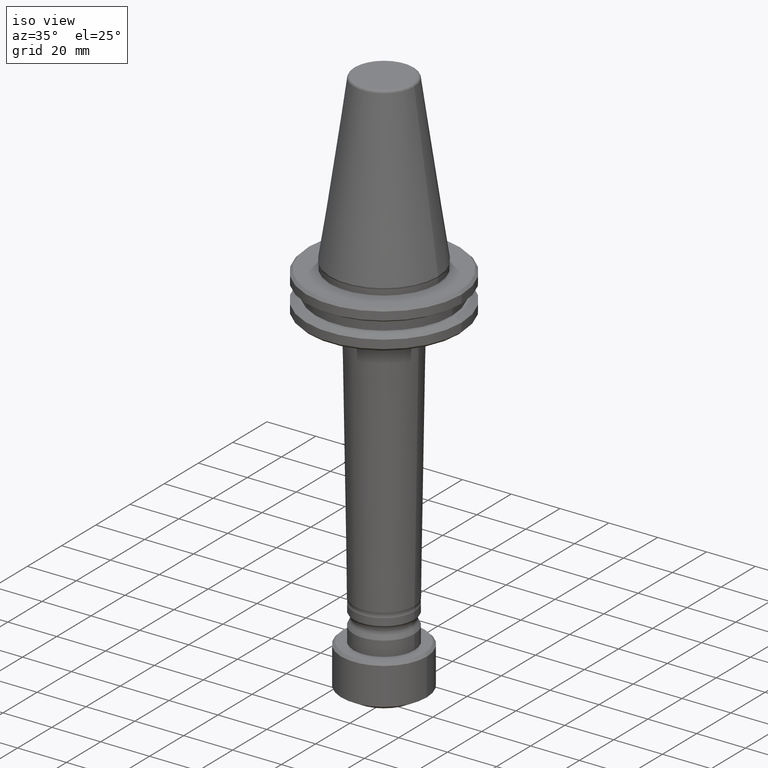
[diagram: clean part render]
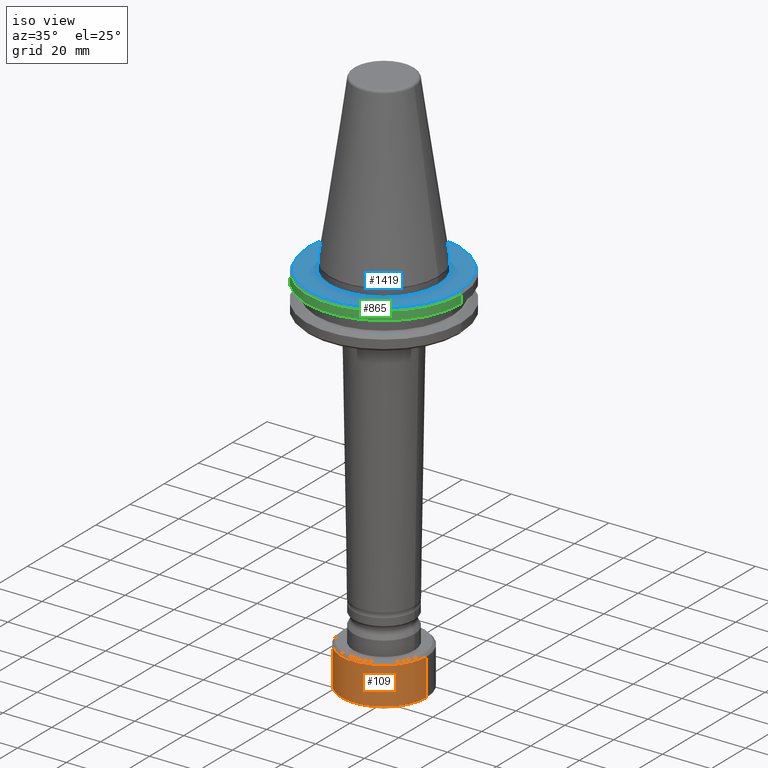
[diagram: same view with three faces highlighted in distinct colors, each labeled with its STEP entity id]
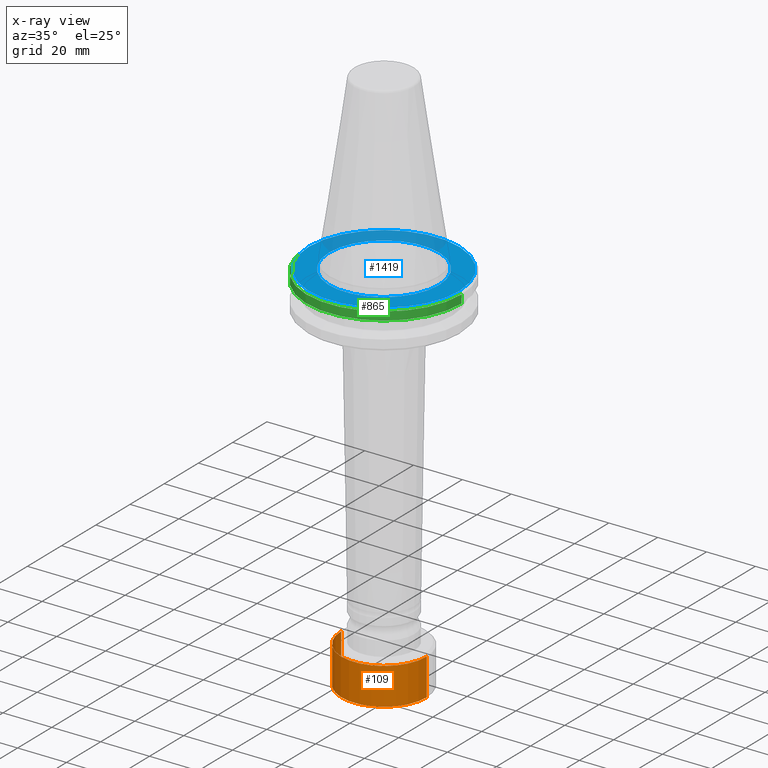
[diagram: x-ray of the same camera — body ghosted, the three highlighted faces saturated]
A machine part, iso view with three faces highlighted in distinct colors.
The next image is the same camera in x-ray (body ghosted, the three faces saturated) — at least one of them is partly hidden behind the body in this view.
Their STEP definitions:

[orange] entity #109 — the highlighted cylindrical surface (partial cylindrical patch) has radius 17.5 mm, axis along (-0, -0, 1).
#78 = CARTESIAN_POINT ( 'NONE',  ( -17.49999999999998900, 2.143131898507866700E-015, -8.613248653999983500 ) ) ;
#109 = ADVANCED_FACE ( 'NONE', ( #796 ), #435, .T. ) ;
#123 = DIRECTION ( 'NONE',  ( -0.0000000000000000000, -0.0000000000000000000, 1.000000000000000000 ) ) ;
#132 = CARTESIAN_POINT ( 'NONE',  ( 17.49999999999998900, 0.0000000000000000000, -8.613248653999983500 ) ) ;
#149 = DIRECTION ( 'NONE',  ( -0.0000000000000000000, -0.0000000000000000000, 1.000000000000000000 ) ) ;
#284 = CARTESIAN_POINT ( 'NONE',  ( -17.49999999999998900, 2.143131898507866300E-015, 256.3737897661631600 ) ) ;
#290 = VERTEX_POINT ( 'NONE', #132 ) ;
#357 = CIRCLE ( 'NONE', #616, 17.49999999999998900 ) ;
#358 = EDGE_CURVE ( 'NONE', #629, #1293, #631, .T. ) ;
#435 = CYLINDRICAL_SURFACE ( 'NONE', #1435, 17.49999999999998900 ) ;
#501 = VERTEX_POINT ( 'NONE', #1264 ) ;
#506 = CARTESIAN_POINT ( 'NONE',  ( -17.49999999999998900, 2.143131898507866300E-015, 6.500000000000005300 ) ) ;
#508 = ORIENTED_EDGE ( 'NONE', *, *, #975, .F. ) ;
#549 = CIRCLE ( 'NONE', #1430, 17.49999999999998900 ) ;
#562 = DIRECTION ( 'NONE',  ( 1.000000000000000000, 0.0000000000000000000, 0.0000000000000000000 ) ) ;
#568 = DIRECTION ( 'NONE',  ( -0.0000000000000000000, -0.0000000000000000000, 1.000000000000000000 ) ) ;
#583 = DIRECTION ( 'NONE',  ( -0.0000000000000000000, -0.0000000000000000000, 1.000000000000000000 ) ) ;
#616 = AXIS2_PLACEMENT_3D ( 'NONE', #1266, #568, #562 ) ;
#629 = VERTEX_POINT ( 'NONE', #78 ) ;
#631 = LINE ( 'NONE', #284, #1332 ) ;
#667 = CARTESIAN_POINT ( 'NONE',  ( 17.49999999999998900, 0.0000000000000000000, 256.3737897661631600 ) ) ;
#683 = DIRECTION ( 'NONE',  ( 1.000000000000000000, 0.0000000000000000000, 0.0000000000000000000 ) ) ;
#704 = EDGE_LOOP ( 'NONE', ( #1289, #1069, #1254, #508 ) ) ;
#776 = VECTOR ( 'NONE', #149, 1000.000000000000000 ) ;
#780 = LINE ( 'NONE', #667, #776 ) ;
#796 = FACE_OUTER_BOUND ( 'NONE', #704, .T. ) ;
#889 = CARTESIAN_POINT ( 'NONE',  ( 0.0000000000000000000, 0.0000000000000000000, -8.613248653999983500 ) ) ;
#975 = EDGE_CURVE ( 'NONE', #1293, #501, #357, .T. ) ;
#989 = DIRECTION ( 'NONE',  ( 1.000000000000000000, 0.0000000000000000000, 0.0000000000000000000 ) ) ;
#1069 = ORIENTED_EDGE ( 'NONE', *, *, #1297, .T. ) ;
#1254 = ORIENTED_EDGE ( 'NONE', *, *, #1398, .T. ) ;
#1259 = CARTESIAN_POINT ( 'NONE',  ( 0.0000000000000000000, 0.0000000000000000000, 256.3737897661631600 ) ) ;
#1264 = CARTESIAN_POINT ( 'NONE',  ( 17.49999999999998900, 0.0000000000000000000, 6.500000000000005300 ) ) ;
#1266 = CARTESIAN_POINT ( 'NONE',  ( 0.0000000000000000000, 0.0000000000000000000, 6.500000000000005300 ) ) ;
#1289 = ORIENTED_EDGE ( 'NONE', *, *, #358, .F. ) ;
#1293 = VERTEX_POINT ( 'NONE', #506 ) ;
#1297 = EDGE_CURVE ( 'NONE', #629, #290, #549, .T. ) ;
#1332 = VECTOR ( 'NONE', #1464, 1000.000000000000000 ) ;
#1398 = EDGE_CURVE ( 'NONE', #290, #501, #780, .T. ) ;
#1430 = AXIS2_PLACEMENT_3D ( 'NONE', #889, #123, #989 ) ;
#1435 = AXIS2_PLACEMENT_3D ( 'NONE', #1259, #583, #683 ) ;
#1464 = DIRECTION ( 'NONE',  ( -0.0000000000000000000, -0.0000000000000000000, 1.000000000000000000 ) ) ;

[blue] entity #1419 — the highlighted planar face has unit normal (0, 0, -1).
#35 = DIRECTION ( 'NONE',  ( -1.000000000000000000, 0.0000000000000000000, -0.0000000000000000000 ) ) ;
#44 = CARTESIAN_POINT ( 'NONE',  ( 22.49999999999974400, 0.0000000000000000000, 145.3000000000001500 ) ) ;
#138 = CIRCLE ( 'NONE', #1372, 30.74999999999927900 ) ;
#146 = ORIENTED_EDGE ( 'NONE', *, *, #996, .T. ) ;
#159 = EDGE_CURVE ( 'NONE', #643, #983, #628, .T. ) ;
#256 = AXIS2_PLACEMENT_3D ( 'NONE', #1158, #469, #1465 ) ;
#286 = CARTESIAN_POINT ( 'NONE',  ( -30.74999999999927900, 0.0000000000000000000, 145.3000000000002100 ) ) ;
#303 = ORIENTED_EDGE ( 'NONE', *, *, #1454, .F. ) ;
#398 = EDGE_CURVE ( 'NONE', #1393, #1166, #659, .T. ) ;
#429 = DIRECTION ( 'NONE',  ( -0.0000000000000000000, -0.0000000000000000000, 1.000000000000000000 ) ) ;
#432 = FACE_BOUND ( 'NONE', #1340, .T. ) ;
#469 = DIRECTION ( 'NONE',  ( -0.0000000000000000000, -0.0000000000000000000, 1.000000000000000000 ) ) ;
#510 = AXIS2_PLACEMENT_3D ( 'NONE', #1141, #429, #1268 ) ;
#541 = CARTESIAN_POINT ( 'NONE',  ( 0.0000000000000000000, 30.74999999999927900, 145.3000000000002100 ) ) ;
#619 = CARTESIAN_POINT ( 'NONE',  ( -22.49999999999974400, 2.755455298081513200E-015, 145.3000000000001500 ) ) ;
#628 = CIRCLE ( 'NONE', #256, 22.49999999999974400 ) ;
#643 = VERTEX_POINT ( 'NONE', #619 ) ;
#659 = CIRCLE ( 'NONE', #1338, 30.74999999999927900 ) ;
#700 = CARTESIAN_POINT ( 'NONE',  ( 0.0000000000000000000, 0.0000000000000000000, 145.3000000000002100 ) ) ;
#798 = FACE_OUTER_BOUND ( 'NONE', #1367, .T. ) ;
#809 = DIRECTION ( 'NONE',  ( 0.0000000000000000000, 0.0000000000000000000, -1.000000000000000000 ) ) ;
#871 = CIRCLE ( 'NONE', #510, 22.49999999999974400 ) ;
#892 = AXIS2_PLACEMENT_3D ( 'NONE', #541, #809, #35 ) ;
#926 = DIRECTION ( 'NONE',  ( -0.0000000000000000000, -0.0000000000000000000, 1.000000000000000000 ) ) ;
#983 = VERTEX_POINT ( 'NONE', #44 ) ;
#996 = EDGE_CURVE ( 'NONE', #1166, #1393, #138, .T. ) ;
#1018 = CARTESIAN_POINT ( 'NONE',  ( 0.0000000000000000000, 0.0000000000000000000, 145.3000000000002100 ) ) ;
#1070 = ORIENTED_EDGE ( 'NONE', *, *, #159, .F. ) ;
#1139 = DIRECTION ( 'NONE',  ( 1.000000000000000000, 0.0000000000000000000, 0.0000000000000000000 ) ) ;
#1141 = CARTESIAN_POINT ( 'NONE',  ( 0.0000000000000000000, 0.0000000000000000000, 145.3000000000002100 ) ) ;
#1146 = DIRECTION ( 'NONE',  ( -0.0000000000000000000, -0.0000000000000000000, 1.000000000000000000 ) ) ;
#1158 = CARTESIAN_POINT ( 'NONE',  ( 0.0000000000000000000, 0.0000000000000000000, 145.3000000000002100 ) ) ;
#1166 = VERTEX_POINT ( 'NONE', #1514 ) ;
#1233 = ORIENTED_EDGE ( 'NONE', *, *, #398, .T. ) ;
#1268 = DIRECTION ( 'NONE',  ( 1.000000000000000000, 0.0000000000000000000, 0.0000000000000000000 ) ) ;
#1315 = DIRECTION ( 'NONE',  ( 1.000000000000000000, 0.0000000000000000000, 0.0000000000000000000 ) ) ;
#1338 = AXIS2_PLACEMENT_3D ( 'NONE', #1018, #926, #1315 ) ;
#1340 = EDGE_LOOP ( 'NONE', ( #303, #1070 ) ) ;
#1367 = EDGE_LOOP ( 'NONE', ( #1233, #146 ) ) ;
#1372 = AXIS2_PLACEMENT_3D ( 'NONE', #700, #1146, #1139 ) ;
#1393 = VERTEX_POINT ( 'NONE', #286 ) ;
#1419 = ADVANCED_FACE ( 'NONE', ( #432, #798 ), #1473, .F. ) ;
#1454 = EDGE_CURVE ( 'NONE', #983, #643, #871, .T. ) ;
#1465 = DIRECTION ( 'NONE',  ( 1.000000000000000000, 0.0000000000000000000, 0.0000000000000000000 ) ) ;
#1473 = PLANE ( 'NONE',  #892 ) ;
#1514 = CARTESIAN_POINT ( 'NONE',  ( 30.74999999999927900, 3.827021247335390500E-015, 145.3000000000002100 ) ) ;

[green] entity #865 — the highlighted cylindrical surface (partial cylindrical patch) has radius 31.75 mm, axis along (-0, -0, 1).
#27 = EDGE_CURVE ( 'NONE', #1011, #1380, #299, .T. ) ;
#122 = FACE_OUTER_BOUND ( 'NONE', #1052, .T. ) ;
#193 = DIRECTION ( 'NONE',  ( 1.000000000000000000, 0.0000000000000000000, 0.0000000000000000000 ) ) ;
#199 = AXIS2_PLACEMENT_3D ( 'NONE', #382, #222, #193 ) ;
#222 = DIRECTION ( 'NONE',  ( -0.0000000000000000000, -0.0000000000000000000, 1.000000000000000000 ) ) ;
#252 = CYLINDRICAL_SURFACE ( 'NONE', #814, 31.74999999999927900 ) ;
#292 = CARTESIAN_POINT ( 'NONE',  ( 0.0000000000000000000, 0.0000000000000000000, 144.3000000000002100 ) ) ;
#294 = CIRCLE ( 'NONE', #199, 31.74999999999927900 ) ;
#299 = LINE ( 'NONE', #658, #968 ) ;
#382 = CARTESIAN_POINT ( 'NONE',  ( 0.0000000000000000000, 0.0000000000000000000, 140.9218366420564900 ) ) ;
#468 = CIRCLE ( 'NONE', #1437, 31.74999999999927900 ) ;
#558 = CARTESIAN_POINT ( 'NONE',  ( -31.74999999999927900, 3.888253587292757300E-015, 140.9218366420564900 ) ) ;
#573 = DIRECTION ( 'NONE',  ( -0.0000000000000000000, -0.0000000000000000000, 1.000000000000000000 ) ) ;
#614 = DIRECTION ( 'NONE',  ( 1.000000000000000000, 0.0000000000000000000, 0.0000000000000000000 ) ) ;
#624 = CARTESIAN_POINT ( 'NONE',  ( 0.0000000000000000000, 0.0000000000000000000, 239.1351229564365600 ) ) ;
#625 = ORIENTED_EDGE ( 'NONE', *, *, #1366, .T. ) ;
#658 = CARTESIAN_POINT ( 'NONE',  ( -31.74999999999927900, 3.888253587292758100E-015, 239.1351229564365600 ) ) ;
#682 = ORIENTED_EDGE ( 'NONE', *, *, #27, .F. ) ;
#740 = LINE ( 'NONE', #795, #791 ) ;
#755 = VERTEX_POINT ( 'NONE', #920 ) ;
#791 = VECTOR ( 'NONE', #1117, 1000.000000000000000 ) ;
#795 = CARTESIAN_POINT ( 'NONE',  ( 31.74999999999927900, 0.0000000000000000000, 239.1351229564365600 ) ) ;
#814 = AXIS2_PLACEMENT_3D ( 'NONE', #624, #573, #1495 ) ;
#865 = ADVANCED_FACE ( 'NONE', ( #122 ), #252, .T. ) ;
#920 = CARTESIAN_POINT ( 'NONE',  ( 31.74999999999927900, 0.0000000000000000000, 140.9218366420564900 ) ) ;
#930 = EDGE_CURVE ( 'NONE', #1011, #755, #294, .T. ) ;
#968 = VECTOR ( 'NONE', #1093, 1000.000000000000000 ) ;
#992 = ORIENTED_EDGE ( 'NONE', *, *, #1143, .F. ) ;
#1011 = VERTEX_POINT ( 'NONE', #558 ) ;
#1052 = EDGE_LOOP ( 'NONE', ( #682, #1200, #625, #992 ) ) ;
#1093 = DIRECTION ( 'NONE',  ( -0.0000000000000000000, -0.0000000000000000000, 1.000000000000000000 ) ) ;
#1117 = DIRECTION ( 'NONE',  ( -0.0000000000000000000, -0.0000000000000000000, 1.000000000000000000 ) ) ;
#1143 = EDGE_CURVE ( 'NONE', #1380, #1421, #468, .T. ) ;
#1200 = ORIENTED_EDGE ( 'NONE', *, *, #930, .T. ) ;
#1243 = CARTESIAN_POINT ( 'NONE',  ( -31.74999999999927900, 3.888253587292758100E-015, 144.3000000000002100 ) ) ;
#1313 = DIRECTION ( 'NONE',  ( -0.0000000000000000000, -0.0000000000000000000, 1.000000000000000000 ) ) ;
#1361 = CARTESIAN_POINT ( 'NONE',  ( 31.74999999999927900, 0.0000000000000000000, 144.3000000000002100 ) ) ;
#1366 = EDGE_CURVE ( 'NONE', #755, #1421, #740, .T. ) ;
#1380 = VERTEX_POINT ( 'NONE', #1243 ) ;
#1421 = VERTEX_POINT ( 'NONE', #1361 ) ;
#1437 = AXIS2_PLACEMENT_3D ( 'NONE', #292, #1313, #614 ) ;
#1495 = DIRECTION ( 'NONE',  ( 1.000000000000000000, 0.0000000000000000000, 0.0000000000000000000 ) ) ;